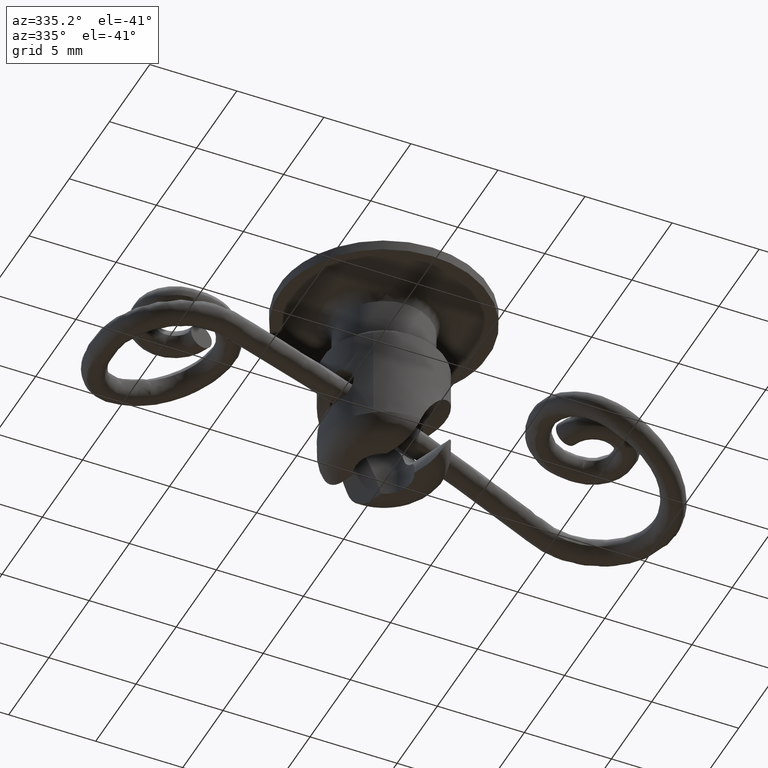
[diagram: clean part render]
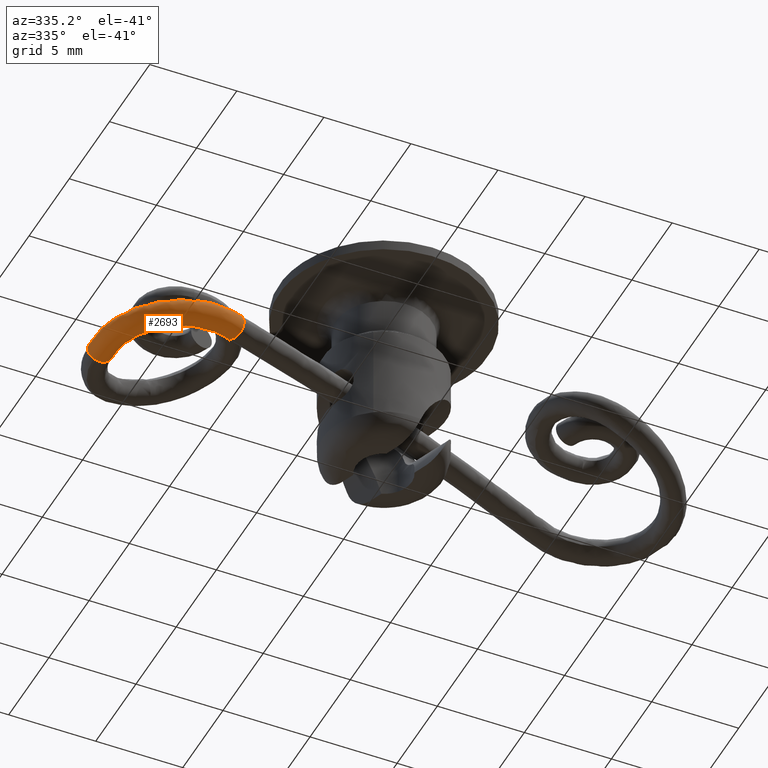
[diagram: same view with one face highlighted and labeled with its STEP entity id]
A machine part, auxiliary view. The second image highlights one B-rep face of the part: STEP entity #2693.
In plain terms, the highlighted face is a freeform B-spline surface patch.
Its self-contained STEP definition (entity closure, byte-faithful):
#1843=CARTESIAN_POINT('',(-15.851362978049870,-0.035747342229020,-0.562511445326942));
#1844=VERTEX_POINT('',#1843);
#1866=CARTESIAN_POINT('',(-15.702560363959901,-0.044682730714215,-0.737076567360537));
#1867=VERTEX_POINT('',#1866);
#1868=CARTESIAN_POINT('',(-15.702560363959901,-0.044682730714215,-0.737076567360537));
#1869=CARTESIAN_POINT('',(-15.714324535176139,-0.044021696693457,-0.717565575351801));
#1870=CARTESIAN_POINT('',(-15.727170419378069,-0.043283126895114,-0.698387621659394));
#1871=CARTESIAN_POINT('',(-15.754484377053620,-0.041681140525714,-0.661615811033436));
#1872=CARTESIAN_POINT('',(-15.783431855737209,-0.039953580187108,-0.626356114285103));
#1873=CARTESIAN_POINT('',(-15.815658820426490,-0.037973758986502,-0.594132173164435));
#1874=CARTESIAN_POINT('',(-15.838751173822160,-0.036537037574293,-0.573278093930521));
#1875=CARTESIAN_POINT('',(-15.845002051039350,-0.036146450298443,-0.567840929806667));
#1876=CARTESIAN_POINT('',(-15.851362978049870,-0.035747342229020,-0.562511445326942));
#1877=B_SPLINE_CURVE_WITH_KNOTS('',3,(#1868,#1869,#1870,#1871,#1872,#1873,#1874,#1875,#1876),.UNSPECIFIED.,.F.,.U.,(4,2,1,2,4),(0.0,0.031250000000003,0.062500000000006,0.093750000000010,0.105032502742349),.UNSPECIFIED.);
#1878=EDGE_CURVE('',#1867,#1844,#1877,.T.);
#1880=CARTESIAN_POINT('',(-16.675838631282570,0.031183997560970,-1.688415356968777));
#1881=VERTEX_POINT('',#1880);
#1882=CARTESIAN_POINT('',(-15.702560363959901,-0.044682730714215,-0.737076567360537));
#1883=CARTESIAN_POINT('',(-15.690789750928500,-0.045345940934791,-0.756598138988661));
#1884=CARTESIAN_POINT('',(-15.679820622488890,-0.045946350148482,-0.776919161550135));
#1885=CARTESIAN_POINT('',(-15.660008134965050,-0.046992894835358,-0.818257474081700));
#1886=CARTESIAN_POINT('',(-15.642263529445350,-0.047888787965696,-0.860336263053698));
#1887=CARTESIAN_POINT('',(-15.628623844300151,-0.048485577064181,-0.903884961083993));
#1888=CARTESIAN_POINT('',(-15.617098881075391,-0.048928273368281,-0.948190908684215));
#1889=CARTESIAN_POINT('',(-15.612377194132931,-0.049072797837666,-0.970836658911007));
#1890=CARTESIAN_POINT('',(-15.601725594005989,-0.049257592414892,-1.039149010878556));
#1891=CARTESIAN_POINT('',(-15.599377455478150,-0.049048310889253,-1.084702635874630));
#1892=CARTESIAN_POINT('',(-15.603638274967100,-0.048003191115364,-1.175832607929155));
#1893=CARTESIAN_POINT('',(-15.610365758916879,-0.047155213289313,-1.221877685596289));
#1894=CARTESIAN_POINT('',(-15.632224512207820,-0.044897613178829,-1.310787384297349));
#1895=CARTESIAN_POINT('',(-15.647262183515450,-0.043493021216028,-1.353836872467731));
#1896=CARTESIAN_POINT('',(-15.676059409270851,-0.040967176530538,-1.416276285654826));
#1897=CARTESIAN_POINT('',(-15.686776116197640,-0.040049157069553,-1.436834165485584));
#1898=CARTESIAN_POINT('',(-15.709977902889561,-0.038101869076028,-1.476433987604539));
#1899=CARTESIAN_POINT('',(-15.722473081810790,-0.037071462561576,-1.495528589348351));
#1900=CARTESIAN_POINT('',(-15.762641831380110,-0.033809931418319,-1.550696185706986));
#1901=CARTESIAN_POINT('',(-15.793033371936520,-0.031406289415774,-1.584625559077020));
#1902=CARTESIAN_POINT('',(-15.861122165686790,-0.026135315925091,-1.646722403721453));
#1903=CARTESIAN_POINT('',(-15.897893641586879,-0.023339487213968,-1.674065174734449));
#1904=CARTESIAN_POINT('',(-15.956322999450959,-0.018962955796450,-1.709461800118570));
#1905=CARTESIAN_POINT('',(-15.976379828547079,-0.017471053508226,-1.720342067368045));
#1906=CARTESIAN_POINT('',(-16.017675528133140,-0.014419919606739,-1.740231691228751));
#1907=CARTESIAN_POINT('',(-16.038993971815419,-0.012854970613611,-1.749259627291171));
#1908=CARTESIAN_POINT('',(-16.103441132953709,-0.008153702842525,-1.772931117136142));
#1909=CARTESIAN_POINT('',(-16.147420048454730,-0.004983847837159,-1.784412696374978));
#1910=CARTESIAN_POINT('',(-16.237470821519629,0.001429484680177,-1.798502908013153));
#1911=CARTESIAN_POINT('',(-16.283946048853831,0.004699634364444,-1.800923962216466));
#1912=CARTESIAN_POINT('',(-16.375022933986791,0.011033060754984,-1.796521400469280));
#1913=CARTESIAN_POINT('',(-16.420063321413771,0.014128503560284,-1.789878125284685));
#1914=CARTESIAN_POINT('',(-16.486886869232031,0.018666193701656,-1.773339844331489));
#1915=CARTESIAN_POINT('',(-16.509056370000469,0.020162163253254,-1.766699661121625));
#1916=CARTESIAN_POINT('',(-16.552208759840809,0.023055222556837,-1.751482131363098));
#1917=CARTESIAN_POINT('',(-16.573312890346731,0.024460583228384,-1.742879405511981));
#1918=CARTESIAN_POINT('',(-16.622107299498889,0.027687058371206,-1.720206524139206));
#1919=CARTESIAN_POINT('',(-16.649475690353750,0.029478399048031,-1.705251238148345));
#1920=CARTESIAN_POINT('',(-16.675838631282570,0.031183997560970,-1.688415356968777));
#1921=B_SPLINE_CURVE_WITH_KNOTS('',3,(#1882,#1883,#1884,#1885,#1886,#1887,#1888,#1889,#1890,#1891,#1892,#1893,#1894,#1895,#1896,#1897,#1898,#1899,#1900,#1901,#1902,#1903,#1904,#1905,#1906,#1907,#1908,#1909,#1910,#1911,#1912,#1913,#1914,#1915,#1916,#1917,#1918,#1919,#1920),.UNSPECIFIED.,.F.,.U.,(4,2,1,2,2,2,2,2,2,2,2,2,2,2,2,2,2,2,2,4),(0.0,0.031250000000002,0.062500000000003,0.093750000000005,0.125000000000006,0.187500000000007,0.250000000000009,0.312500000000010,0.343750000000011,0.375000000000012,0.437500000000013,0.500000000000015,0.531250000000016,0.562500000000016,0.625000000000013,0.687500000000010,0.750000000000007,0.781250000000008,0.812500000000009,0.855142002009975),.UNSPECIFIED.);
#1922=EDGE_CURVE('',#1867,#1881,#1921,.T.);
#2117=CARTESIAN_POINT('',(-16.895671377089052,0.044698297213700,-1.461551791880656));
#2118=VERTEX_POINT('',#2117);
#2119=CARTESIAN_POINT('',(-16.675838631282570,0.031183997560970,-1.688415356968777));
#2120=CARTESIAN_POINT('',(-16.688115652413099,0.031978283137762,-1.680575094678145));
#2121=CARTESIAN_POINT('',(-16.700174623580381,0.032753973980269,-1.672326991352333));
#2122=CARTESIAN_POINT('',(-16.749192848632049,0.035887576198699,-1.636423811596442));
#2123=CARTESIAN_POINT('',(-16.783210286948350,0.038014219643565,-1.605654606490253));
#2124=CARTESIAN_POINT('',(-16.845077242508012,0.041780061648125,-1.537286579588553));
#2125=CARTESIAN_POINT('',(-16.872073560472980,0.043369069020755,-1.500748868534708));
#2126=CARTESIAN_POINT('',(-16.895671377089052,0.044698297213700,-1.461551791880656));
#2127=B_SPLINE_CURVE_WITH_KNOTS('',3,(#2119,#2120,#2121,#2122,#2123,#2124,#2125,#2126),.UNSPECIFIED.,.F.,.U.,(4,2,2,4),(0.855142002009974,0.875000000000006,0.937500000000003,1.0),.UNSPECIFIED.);
#2128=EDGE_CURVE('',#1881,#2118,#2127,.T.);
#2130=CARTESIAN_POINT('',(-16.552788494496760,0.012178419610532,-0.447710236215660));
#2131=VERTEX_POINT('',#2130);
#2132=CARTESIAN_POINT('',(-16.552788494496760,0.012178419610532,-0.447710236215660));
#2133=CARTESIAN_POINT('',(-16.590445244918190,0.014931417912053,-0.462531374062653));
#2134=CARTESIAN_POINT('',(-16.626519791417941,0.017601342722640,-0.480438444089063));
#2135=CARTESIAN_POINT('',(-16.680315419749959,0.021634455976669,-0.512994373725650));
#2136=CARTESIAN_POINT('',(-16.699250625442019,0.023065237004521,-0.525722505838855));
#2137=CARTESIAN_POINT('',(-16.736004697594112,0.025866181107677,-0.553122830345235));
#2138=CARTESIAN_POINT('',(-16.753877906601641,0.027240692602966,-0.567859051323618));
#2139=CARTESIAN_POINT('',(-16.804625150279779,0.031182193680034,-0.614123287547417));
#2140=CARTESIAN_POINT('',(-16.834999329144210,0.033595297490177,-0.647945113060947));
#2141=CARTESIAN_POINT('',(-16.888726030087000,0.037983982533161,-0.721639103381998));
#2142=CARTESIAN_POINT('',(-16.912234317563730,0.039973202192326,-0.761835968088887));
#2143=CARTESIAN_POINT('',(-16.950530940161180,0.043363331954384,-0.844778501241623));
#2144=CARTESIAN_POINT('',(-16.965625808000748,0.044788316472348,-0.887831920958163));
#2145=CARTESIAN_POINT('',(-16.982117294813140,0.046514487003386,-0.954812909264909));
#2146=CARTESIAN_POINT('',(-16.986564570927030,0.047019660927249,-0.977548498985174));
#2147=CARTESIAN_POINT('',(-16.993172819638360,0.047868128568502,-1.022879123249094));
#2148=CARTESIAN_POINT('',(-16.997560868584610,0.048561377849680,-1.068307300446899));
#2149=CARTESIAN_POINT('',(-16.997487068451239,0.048942309108323,-1.113931530367975));
#2150=CARTESIAN_POINT('',(-16.995089132971160,0.049160406642452,-1.159657884040670));
#2151=CARTESIAN_POINT('',(-16.992693617655299,0.049186747204104,-1.182704740322913));
#2152=CARTESIAN_POINT('',(-16.982054146015610,0.049014242649551,-1.250939863874918));
#2153=CARTESIAN_POINT('',(-16.970524713727510,0.048574090308947,-1.295027710770801));
#2154=CARTESIAN_POINT('',(-16.947059454530599,0.047460944393110,-1.359208960577981));
#2155=CARTESIAN_POINT('',(-16.938199089091711,0.047013677517423,-1.380274433467460));
#2156=CARTESIAN_POINT('',(-16.923322276301960,0.046226432607087,-1.411371268678771));
#2157=CARTESIAN_POINT('',(-16.918089984499410,0.045944111932686,-1.421668162197110));
#2158=CARTESIAN_POINT('',(-16.907129935116870,0.045342393571320,-1.442004934932489));
#2159=CARTESIAN_POINT('',(-16.901547240869409,0.045030557766506,-1.451791462184160));
#2160=CARTESIAN_POINT('',(-16.895671377089052,0.044698297213700,-1.461551791880656));
#2161=B_SPLINE_CURVE_WITH_KNOTS('',3,(#2132,#2133,#2134,#2135,#2136,#2137,#2138,#2139,#2140,#2141,#2142,#2143,#2144,#2145,#2146,#2147,#2148,#2149,#2150,#2151,#2152,#2153,#2154,#2155,#2156,#2157,#2158,#2159,#2160),.UNSPECIFIED.,.F.,.U.,(4,2,2,2,2,2,2,2,1,2,2,2,2,2,4),(0.444932661165412,0.500000000000014,0.531250000000013,0.562500000000012,0.625000000000010,0.687500000000007,0.750000000000005,0.781250000000004,0.812500000000004,0.843750000000003,0.875000000000002,0.937500000000001,0.968750000000000,0.984375000000000,1.0),.UNSPECIFIED.);
#2162=EDGE_CURVE('',#2131,#2118,#2161,.T.);
#2190=CARTESIAN_POINT('',(-16.545970037136929,0.096153984104199,-0.448632201716833));
#2191=CARTESIAN_POINT('',(-16.654752066600711,0.104809266420495,-0.491492759826956));
#2192=CARTESIAN_POINT('',(-16.753115572632201,0.112302845146559,-0.561287401899285));
#2193=CARTESIAN_POINT('',(-16.945442479716419,0.125946201749857,-0.791836148446841));
#2194=CARTESIAN_POINT('',(-17.004363704710979,0.128866621008720,-0.979940171733619));
#2195=CARTESIAN_POINT('',(-16.972234785980120,0.122261096069556,-1.344989702959366));
#2196=CARTESIAN_POINT('',(-16.881382486761670,0.112775827589112,-1.519687296952271));
#2197=CARTESIAN_POINT('',(-16.601400325508742,0.086795964873423,-1.754788286964860));
#2198=CARTESIAN_POINT('',(-16.413994546786640,0.070461350286759,-1.813743970416805));
#2199=CARTESIAN_POINT('',(-16.050168895851169,0.040325801024813,-1.781177447794204));
#2200=CARTESIAN_POINT('',(-15.875989401133680,0.026710436020663,-1.689855780918014));
#2201=CARTESIAN_POINT('',(-15.641444392494391,0.010072196260542,-1.408698772933187));
#2202=CARTESIAN_POINT('',(-15.582523167499909,0.007151777001681,-1.220594749646408));
#2203=CARTESIAN_POINT('',(-15.614652086230720,0.013757301940845,-0.855545218420636));
#2204=CARTESIAN_POINT('',(-15.705504385449270,0.023242570421299,-0.680847624427730));
#2205=CARTESIAN_POINT('',(-15.845495466075720,0.036232501779140,-0.563297129421449));
#2206=CARTESIAN_POINT('',(-16.547808139677912,0.073622690294901,-0.448385819601387));
#2207=CARTESIAN_POINT('',(-16.656583406460790,0.082360877337775,-0.491247284350685));
#2208=CARTESIAN_POINT('',(-16.754940615571631,0.089931650990195,-0.561042770620492));
#2209=CARTESIAN_POINT('',(-16.947254659049531,0.103732704611612,-0.791593241730490));
#2210=CARTESIAN_POINT('',(-17.006171254600559,0.106709877051638,-0.979697885666393));
#2211=CARTESIAN_POINT('',(-16.974042119352390,0.100107006737286,-1.344747445925343));
#2212=CARTESIAN_POINT('',(-16.883194234393439,0.090567623353759,-1.519444448123545));
#2213=CARTESIAN_POINT('',(-16.603227454263571,0.064399201407753,-1.754543376070354));
#2214=CARTESIAN_POINT('',(-16.415832547690659,0.047931303610055,-1.813497601949079));
#2215=CARTESIAN_POINT('',(-16.052028865465338,0.017526436702471,-1.780928134091885));
#2216=CARTESIAN_POINT('',(-15.877860332029179,0.003776695676728,-1.689604997690581));
#2217=CARTESIAN_POINT('',(-15.643331010714659,-0.013053857520121,-1.408445886580825));
#2218=CARTESIAN_POINT('',(-15.584414415163719,-0.016031029960147,-1.220341242644922));
#2219=CARTESIAN_POINT('',(-15.616543550411841,-0.009428159645795,-0.855291682385947));
#2220=CARTESIAN_POINT('',(-15.707391435370880,0.000111223737745,-0.680594680187743));
#2221=CARTESIAN_POINT('',(-15.847374825435800,0.013195434710742,-0.563045216214352));
#2222=CARTESIAN_POINT('',(-16.549659668080729,0.050920913778403,-0.448137526029384));
#2223=CARTESIAN_POINT('',(-16.658436483977621,0.059639960763567,-0.490998780272562));
#2224=CARTESIAN_POINT('',(-16.756795135470458,0.067192912565756,-0.560794070530043));
#2225=CARTESIAN_POINT('',(-16.949112125383738,0.080957558957766,-0.791344141205673));
#2226=CARTESIAN_POINT('',(-17.008029781173239,0.083921628880369,-0.979448641015673));
#2227=CARTESIAN_POINT('',(-16.975900695020460,0.077318145657412,-1.344498194483716));
#2228=CARTESIAN_POINT('',(-16.885051798616111,0.067791255656889,-1.519195334058732));
#2229=CARTESIAN_POINT('',(-16.605081494703771,0.041666365987474,-1.754294740736341));
#2230=CARTESIAN_POINT('',(-16.417684097492600,0.025229239018884,-1.813249305021119));
#2231=CARTESIAN_POINT('',(-16.053875382790871,-0.005113451044140,-1.780680520982420));
#2232=CARTESIAN_POINT('',(-15.879704338505739,-0.018832168929036,-1.689357725782734));
#2233=CARTESIAN_POINT('',(-15.645171423977340,-0.035618323065633,-1.408199103007574));
#2234=CARTESIAN_POINT('',(-15.586253768187930,-0.038582392988237,-1.220094603197574));
#2235=CARTESIAN_POINT('',(-15.618382854340650,-0.031978909765280,-0.855045049729511));
#2236=CARTESIAN_POINT('',(-15.709231750745070,-0.022452019764746,-0.680347910154494));
#2237=CARTESIAN_POINT('',(-15.849216902701230,-0.009389574930044,-0.562798206815701));
#2238=CARTESIAN_POINT('',(-16.566481027911660,-0.155434096864376,-0.445879731195164));
#2239=CARTESIAN_POINT('',(-16.675483953356380,-0.149490942420686,-0.488710596706381));
#2240=CARTESIAN_POINT('',(-16.774053140649901,-0.144522702449763,-0.558477591043355));
#2241=CARTESIAN_POINT('',(-16.966800218445449,-0.136038213547926,-0.788969857289467));
#2242=CARTESIAN_POINT('',(-17.025872653363798,-0.134974406466751,-0.977053553600882));
#2243=CARTESIAN_POINT('',(-16.993750793057799,-0.141666775364264,-1.342102132602926));
#2244=CARTESIAN_POINT('',(-16.902754298875550,-0.149381740854908,-1.516819107211130));
#2245=CARTESIAN_POINT('',(-16.622269716436950,-0.169193117399281,-1.751987628992310));
#2246=CARTESIAN_POINT('',(-16.434508805317702,-0.181167533310492,-1.810991047748550));
#2247=CARTESIAN_POINT('',(-16.069965565101949,-0.202492681811354,-1.778520981692655));
#2248=CARTESIAN_POINT('',(-15.895428032296151,-0.211712097703911,-1.687247442115930));
#2249=CARTESIAN_POINT('',(-15.660370620350349,-0.222059035389079,-1.406159312547500));
#2250=CARTESIAN_POINT('',(-15.601298185431750,-0.223122842470253,-1.218075616236084));
#2251=CARTESIAN_POINT('',(-15.633420045737701,-0.216430473572741,-0.853027037234195));
#2252=CARTESIAN_POINT('',(-15.724416539919650,-0.208715508082174,-0.678310062625991));
#2253=CARTESIAN_POINT('',(-15.864658831139129,-0.198809819809949,-0.560725801735324));
#2254=CARTESIAN_POINT('',(-16.569831782524009,-0.347715446589045,-0.442569185267426));
#2255=CARTESIAN_POINT('',(-16.679115027367342,-0.349187347500039,-0.485287180631520));
#2256=CARTESIAN_POINT('',(-16.777945224827729,-0.351123474552246,-0.554949078087347));
#2257=CARTESIAN_POINT('',(-16.971225495899500,-0.356743515124523,-0.785226647131918));
#2258=CARTESIAN_POINT('',(-17.030489809416249,-0.360755751845132,-0.973233075528602));
#2259=CARTESIAN_POINT('',(-16.998376887001552,-0.367685553403507,-1.338278036664710));
#2260=CARTESIAN_POINT('',(-16.907197397074150,-0.370560445682447,-1.513068683600080));
#2261=CARTESIAN_POINT('',(-16.626075219019199,-0.373506957015879,-1.748493914801685));
#2262=CARTESIAN_POINT('',(-16.437863634236852,-0.373560431946470,-1.807678789877075));
#2263=CARTESIAN_POINT('',(-16.072409759762650,-0.370797626677558,-1.775575383631045));
#2264=CARTESIAN_POINT('',(-15.897417873894900,-0.367998359370717,-1.684484789714935));
#2265=CARTESIAN_POINT('',(-15.661710226246450,-0.361144651355784,-1.403658486001730));
#2266=CARTESIAN_POINT('',(-15.602445912729699,-0.357132414635174,-1.215652057605202));
#2267=CARTESIAN_POINT('',(-15.634558835144400,-0.350202613076800,-0.850607096469097));
#2268=CARTESIAN_POINT('',(-15.725738325071751,-0.347327720797860,-0.675816449533725));
#2269=CARTESIAN_POINT('',(-15.866299414099251,-0.345854465131144,-0.558103833932923));
#2270=CARTESIAN_POINT('',(-16.551278632678159,-0.722786281351088,-0.433654713716625));
#2271=CARTESIAN_POINT('',(-16.660073672040991,-0.734127306784814,-0.476138143144106));
#2272=CARTESIAN_POINT('',(-16.758449283471808,-0.745252853460882,-0.545581629246289));
#2273=CARTESIAN_POINT('',(-16.950800894997549,-0.769645423370469,-0.775413017275846));
#2274=CARTESIAN_POINT('',(-17.009730980965550,-0.780413657390281,-0.963258869299279));
#2275=CARTESIAN_POINT('',(-16.977602375571049,-0.787659467307958,-1.328296314694438));
#2276=CARTESIAN_POINT('',(-16.886741526786100,-0.784092424720543,-1.503240068542460));
#2277=CARTESIAN_POINT('',(-16.606729681290151,-0.764592510901394,-1.739198794070620));
#2278=CARTESIAN_POINT('',(-16.419302950681850,-0.748779716876937,-1.798760771391415));
#2279=CARTESIAN_POINT('',(-16.055435006550599,-0.713956864371078,-1.767419355798500));
#2280=CARTESIAN_POINT('',(-15.881234430958150,-0.695161239190083,-1.676708958079020));
#2281=CARTESIAN_POINT('',(-15.646659294951100,-0.665414202714938,-1.396426777555480));
#2282=CARTESIAN_POINT('',(-15.587729208983101,-0.654645968695127,-1.208580925531892));
#2283=CARTESIAN_POINT('',(-15.619857814377649,-0.647400158777449,-0.843543480136735));
#2284=CARTESIAN_POINT('',(-15.710718663162600,-0.650967201364864,-0.668599726288713));
#2285=CARTESIAN_POINT('',(-15.850724585910550,-0.660717158274438,-0.550620363524633));
#2286=CARTESIAN_POINT('',(-16.529717571627440,-0.909681972823458,-0.428006655874656));
#2287=CARTESIAN_POINT('',(-16.637945270310642,-0.925940726875131,-0.470341468609551));
#2288=CARTESIAN_POINT('',(-16.735792612783001,-0.941645308946274,-0.539646573324834));
#2289=CARTESIAN_POINT('',(-16.927065048336150,-0.975392122767365,-0.769195269498005));
#2290=CARTESIAN_POINT('',(-16.985606745111351,-0.989526831084401,-0.956939383568051));
#2291=CARTESIAN_POINT('',(-16.953459948178701,-0.996930104494867,-1.321972067821352));
#2292=CARTESIAN_POINT('',(-16.862969409069152,-0.990153081469086,-1.497012827799356));
#2293=CARTESIAN_POINT('',(-16.584247905112498,-0.959468240130743,-1.733309566222620));
#2294=CARTESIAN_POINT('',(-16.397733260661401,-0.935749373938076,-1.793110468881325));
#2295=CARTESIAN_POINT('',(-16.035708326573751,-0.884951181747685,-1.762251836850650));
#2296=CARTESIAN_POINT('',(-15.862427325919549,-0.858184662519720,-1.671782324454905));
#2297=CARTESIAN_POINT('',(-15.629168258171800,-0.817030011518351,-1.391844890097382));
#2298=CARTESIAN_POINT('',(-15.570626561396599,-0.802895303201276,-1.204100776027334));
#2299=CARTESIAN_POINT('',(-15.602773358329101,-0.795492029790829,-0.839068091773876));
#2300=CARTESIAN_POINT('',(-15.693263897439151,-0.802269052816630,-0.664027331795877));
#2301=CARTESIAN_POINT('',(-15.832624649417451,-0.817611473485811,-0.545878962584323));
#2302=CARTESIAN_POINT('',(-16.428746765013159,-1.463604311643322,-0.407637119661529));
#2303=CARTESIAN_POINT('',(-16.534317616768359,-1.494438250950973,-0.449435951863408));
#2304=CARTESIAN_POINT('',(-16.629691088089629,-1.523714197431144,-0.518241989427382));
#2305=CARTESIAN_POINT('',(-16.815909778330401,-1.585185157574805,-0.746771168687216));
#2306=CARTESIAN_POINT('',(-16.872632673909202,-1.609297434710540,-0.934148369358611));
#2307=CARTESIAN_POINT('',(-16.840400729616601,-1.617167394056335,-1.299163884377028));
#2308=CARTESIAN_POINT('',(-16.751644368665399,-1.600876614373290,-1.474554494244170));
#2309=CARTESIAN_POINT('',(-16.478965552196652,-1.537041832074490,-1.712070265010620));
#2310=CARTESIAN_POINT('',(-16.296722207215101,-1.489890913369472,-1.772732843526690));
#2311=CARTESIAN_POINT('',(-15.943328071085350,-1.391744939145526,-1.743615352803835));
#2312=CARTESIAN_POINT('',(-15.774353421911000,-1.341354250117514,-1.654014584202325));
#2313=CARTESIAN_POINT('',(-15.547257458202751,-1.266389664576540,-1.375320463153750));
#2314=CARTESIAN_POINT('',(-15.490534562623949,-1.242277387440886,-1.187943262482354));
#2315=CARTESIAN_POINT('',(-15.522766506916851,-1.234407428095048,-0.822927747464247));
#2316=CARTESIAN_POINT('',(-15.611522867867150,-1.250698207778058,-0.647537137597108));
#2317=CARTESIAN_POINT('',(-15.747862276101531,-1.282615598927437,-0.528779252213726));
#2318=CARTESIAN_POINT('',(-16.312899971721851,-1.823676183317355,-0.389479242847969));
#2319=CARTESIAN_POINT('',(-16.415422560594219,-1.863984578189210,-0.430800290375102));
#2320=CARTESIAN_POINT('',(-16.507957704490281,-1.902082455821530,-0.499161448803902));
#2321=CARTESIAN_POINT('',(-16.688378129250001,-1.981575221313060,-0.726781809319600));
#2322=CARTESIAN_POINT('',(-16.743014287706700,-2.012173315767035,-0.913831936225985));
#2323=CARTESIAN_POINT('',(-16.710684688976151,-2.020346632876405,-1.278832148045410));
#2324=CARTESIAN_POINT('',(-16.623918012050051,-1.997871525612285,-1.454534622713520));
#2325=CARTESIAN_POINT('',(-16.358172146815448,-1.912487944576910,-1.693137067030535));
#2326=CARTESIAN_POINT('',(-16.180829377090099,-1.850105248614340,-1.754567762742320));
#2327=CARTESIAN_POINT('',(-15.837337569061100,-1.721181313200760,-1.727002363691875));
#2328=CARTESIAN_POINT('',(-15.673303695851450,-1.655433965777140,-1.638176012045390));
#2329=CARTESIAN_POINT('',(-15.453278787607900,-1.558491568836175,-1.360590206538440));
#2330=CARTESIAN_POINT('',(-15.398642629152150,-1.527893474382240,-1.173540079632056));
#2331=CARTESIAN_POINT('',(-15.430972227882400,-1.519720157272945,-0.808539867812632));
#2332=CARTESIAN_POINT('',(-15.517738904808200,-1.542195264537065,-0.632837393144835));
#2333=CARTESIAN_POINT('',(-15.650611837425330,-1.584887055054733,-0.513536170986170));
#2334=CARTESIAN_POINT('',(-15.831350011921220,-2.840256355055007,-0.323087268187892));
#2335=CARTESIAN_POINT('',(-15.921201662245380,-2.907313688465069,-0.362661358411547));
#2336=CARTESIAN_POINT('',(-16.001938527071189,-2.970318250836763,-0.429395874684999));
#2337=CARTESIAN_POINT('',(-16.158256901715099,-3.100691415602820,-0.653693259763180));
#2338=CARTESIAN_POINT('',(-16.204218994727150,-3.149600709124610,-0.839547485929116));
#2339=CARTESIAN_POINT('',(-16.171483533332701,-3.158630465847725,-1.204491747705800));
#2340=CARTESIAN_POINT('',(-16.092987558420450,-3.118695325317750,-1.381334517601188));
#2341=CARTESIAN_POINT('',(-15.856060460746351,-2.972473665391926,-1.623910245679435));
#2342=CARTESIAN_POINT('',(-15.699088295417249,-2.867087554517165,-1.688149463107150));
#2343=CARTESIAN_POINT('',(-15.396758241987749,-2.651269143214240,-1.666259085880295));
#2344=CARTESIAN_POINT('',(-15.253262051779050,-2.542165816459500,-1.580264288507410));
#2345=CARTESIAN_POINT('',(-15.062629887579149,-2.383174152110810,-1.306730892070604));
#2346=CARTESIAN_POINT('',(-15.016667794565199,-2.334264858588945,-1.120876665904670));
#2347=CARTESIAN_POINT('',(-15.049403255960300,-2.325235101865670,-0.755932404127985));
#2348=CARTESIAN_POINT('',(-15.127899230873201,-2.365170242395650,-0.579089634231976));
#2349=CARTESIAN_POINT('',(-15.246362779710550,-2.438281072358600,-0.457801770193163));
#2350=CARTESIAN_POINT('',(-15.329298752961760,-3.430136170864357,-0.262762472238451));
#2351=CARTESIAN_POINT('',(-15.405940045319170,-3.512714803972058,-0.300749251478961));
#2352=CARTESIAN_POINT('',(-15.474376367185380,-3.590171680075454,-0.366005777249802));
#2353=CARTESIAN_POINT('',(-15.605566659989750,-3.750068618011310,-0.587283860065247));
#2354=CARTESIAN_POINT('',(-15.642485448227299,-3.809603127726365,-0.772051475304473));
#2355=CARTESIAN_POINT('',(-15.609326909381000,-3.819129810554345,-1.136944904621242));
#2356=CARTESIAN_POINT('',(-15.539453767031750,-3.769063319947625,-1.314823766002672));
#2357=CARTESIAN_POINT('',(-15.332572349730750,-3.587539818232585,-1.561009682056730));
#2358=CARTESIAN_POINT('',(-15.196838015938001,-3.457200598481035,-1.627800765042265));
#2359=CARTESIAN_POINT('',(-14.937422048633920,-3.190960917637725,-1.611066797074475));
#2360=CARTESIAN_POINT('',(-14.815337855253000,-3.056699915962605,-1.527644791096745));
#2361=CARTESIAN_POINT('',(-14.655349693297101,-2.861703650187325,-1.257793470590104));
#2362=CARTESIAN_POINT('',(-14.618430905059521,-2.802169140472115,-1.073025855349634));
#2363=CARTESIAN_POINT('',(-14.651589443905840,-2.792642457644290,-0.708132426033489));
#2364=CARTESIAN_POINT('',(-14.721462586254500,-2.842708948250545,-0.530253564652680));
#2365=CARTESIAN_POINT('',(-14.824903294905001,-2.933470699108375,-0.407160606625028));
#2366=CARTESIAN_POINT('',(-14.096343790596441,-4.277732508310133,-0.125988803134676));
#2367=CARTESIAN_POINT('',(-14.140542661226620,-4.382613614773451,-0.160376694597597));
#2368=CARTESIAN_POINT('',(-14.178770920962650,-4.480836938239206,-0.222282193923874));
#2369=CARTESIAN_POINT('',(-14.248250895864560,-4.683156401008341,-0.436714658103232));
#2370=CARTESIAN_POINT('',(-14.262960880912020,-4.757958197235889,-0.619018618659035));
#2371=CARTESIAN_POINT('',(-14.228763415875020,-4.768198840963030,-0.983796802963217));
#2372=CARTESIAN_POINT('',(-14.180066548060200,-4.703574628292130,-1.164024783673970));
#2373=CARTESIAN_POINT('',(-14.046972352496001,-4.471326033380370,-1.418396034077904));
#2374=CARTESIAN_POINT('',(-13.963394596538880,-4.305131799135999,-1.490972928162712));
#2375=CARTESIAN_POINT('',(-13.809368445136201,-3.966442042643010,-1.485930016057490));
#2376=CARTESIAN_POINT('',(-13.739868516964600,-3.796032115257390,-1.408341263276410));
#2377=CARTESIAN_POINT('',(-13.655136840254340,-3.549301063099750,-1.146838258179632));
#2378=CARTESIAN_POINT('',(-13.640426855206879,-3.474499266872365,-0.964534297625076));
#2379=CARTESIAN_POINT('',(-13.674624320243881,-3.464258623145065,-0.599756113320271));
#2380=CARTESIAN_POINT('',(-13.723321188059320,-3.528882835816435,-0.419528132608892));
#2381=CARTESIAN_POINT('',(-13.789868285841431,-3.645007133272002,-0.292342507407549));
#2382=CARTESIAN_POINT('',(-13.366985696427660,-4.534386499058246,-0.049711386890426));
#2383=CARTESIAN_POINT('',(-13.391993172509141,-4.646020821216622,-0.082092213057690));
#2384=CARTESIAN_POINT('',(-13.412351781335550,-4.750532245883539,-0.142128877226170));
#2385=CARTESIAN_POINT('',(-13.445326879074020,-4.965697280234820,-0.352743606570356));
#2386=CARTESIAN_POINT('',(-13.446899206247100,-5.045122007997150,-0.533673611761299));
#2387=CARTESIAN_POINT('',(-13.412087194850059,-5.055578791510560,-0.898387527980339));
#2388=CARTESIAN_POINT('',(-13.375917222822700,-4.986546456138840,-1.079925591724074));
#2389=CARTESIAN_POINT('',(-13.286472070344200,-4.738938197847930,-1.338861727519344));
#2390=CARTESIAN_POINT('',(-13.233747678178901,-4.561887005161530,-1.414665314161860));
#2391=CARTESIAN_POINT('',(-13.142065141851440,-4.201259264616920,-1.416142392972946));
#2392=CARTESIAN_POINT('',(-13.103671563411520,-4.019903402057050,-1.341806789536234));
#2393=CARTESIAN_POINT('',(-13.063458029584741,-3.757507018701830,-1.084959558627444));
#2394=CARTESIAN_POINT('',(-13.061885702411040,-3.678082290940115,-0.904029553437746));
#2395=CARTESIAN_POINT('',(-13.096697713808060,-3.667625507426400,-0.539315637218708));
#2396=CARTESIAN_POINT('',(-13.132867685835439,-3.736657842798115,-0.357777573474972));
#2397=CARTESIAN_POINT('',(-13.177590262075000,-3.860461971943415,-0.228309505577338));
#2398=CARTESIAN_POINT('',(-12.248740100583371,-4.617587661606564,0.061364522223679));
#2399=CARTESIAN_POINT('',(-12.244323512818680,-4.731411164495695,0.031906402161530));
#2400=CARTESIAN_POINT('',(-12.237284546029031,-4.837960984504031,-0.025408848169069));
#2401=CARTESIAN_POINT('',(-12.214290729955680,-5.057290101139460,-0.230464160160121));
#2402=CARTESIAN_POINT('',(-12.195720543113939,-5.138213385950740,-0.409393401220600));
#2403=CARTESIAN_POINT('',(-12.159966356899719,-5.148740115249010,-0.774013733667079));
#2404=CARTESIAN_POINT('',(-12.143002525824800,-5.078278737897520,-0.957459554040986));
#2405=CARTESIAN_POINT('',(-12.120479709882840,-4.825691248755910,-1.223043119656336));
#2406=CARTESIAN_POINT('',(-12.115059416748821,-4.645120528470220,-1.303545445729236));
#2407=CARTESIAN_POINT('',(-12.118961531195520,-4.277381146342435,-1.314516993719404));
#2408=CARTESIAN_POINT('',(-12.128259910207920,-4.092476962098485,-1.244918654680046));
#2409=CARTESIAN_POINT('',(-12.156301149321459,-3.825002429616265,-0.994851201033045));
#2410=CARTESIAN_POINT('',(-12.174871336163500,-3.744079144804670,-0.815921959971942));
#2411=CARTESIAN_POINT('',(-12.210625522377720,-3.733552415506555,-0.451301627525465));
#2412=CARTESIAN_POINT('',(-12.227589353452640,-3.804013792858040,-0.267855807151557));
#2413=CARTESIAN_POINT('',(-12.238850761423469,-3.930307537428923,-0.135064024343882));
#2414=CARTESIAN_POINT('',(-11.872440416047640,-4.595842464323630,0.097801242587826));
#2415=CARTESIAN_POINT('',(-11.858122369502899,-4.709093770079551,0.069301870407001));
#2416=CARTESIAN_POINT('',(-11.841863875769770,-4.815110797013258,0.012879337132509));
#2417=CARTESIAN_POINT('',(-11.800036025922321,-5.033351489336220,-0.190352295495445));
#2418=CARTESIAN_POINT('',(-11.774687707169200,-5.113883049081170,-0.368625217568071));
#2419=CARTESIAN_POINT('',(-11.738616477466559,-5.124391405349790,-0.733214851997424));
#2420=CARTESIAN_POINT('',(-11.728115687116359,-5.054303493173241,-0.917286482375912));
#2421=CARTESIAN_POINT('',(-11.728112837844320,-4.803017367366620,-1.185050633661580));
#2422=CARTESIAN_POINT('',(-11.738610796468260,-4.623366531663129,-1.267094307718512));
#2423=CARTESIAN_POINT('',(-11.774677996691500,-4.257485928242399,-1.281180367554952));
#2424=CARTESIAN_POINT('',(-11.800025142505520,-4.073509192075419,-1.213136013734620));
#2425=CARTESIAN_POINT('',(-11.851034715490220,-3.807362006315395,-0.965292559309974));
#2426=CARTESIAN_POINT('',(-11.876383034243339,-3.726830446570445,-0.787019637237659));
#2427=CARTESIAN_POINT('',(-11.912454263945961,-3.716322090302135,-0.422430002808616));
#2428=CARTESIAN_POINT('',(-11.922955054296180,-3.786410002478535,-0.238358372430129));
#2429=CARTESIAN_POINT('',(-11.922956478932189,-3.912053065381845,-0.104476296786984));
#2430=CARTESIAN_POINT('',(-11.321479584844131,-4.490091295860732,0.149751527317416));
#2431=CARTESIAN_POINT('',(-11.292664278405290,-4.600559970367764,0.122619106076914));
#2432=CARTESIAN_POINT('',(-11.262906978782500,-4.703986004806748,0.067469379097447));
#2433=CARTESIAN_POINT('',(-11.193503208243561,-4.916933691391900,-0.133162112382196));
#2434=CARTESIAN_POINT('',(-11.158230665288620,-4.995560343043800,-0.310499277048894));
#2435=CARTESIAN_POINT('',(-11.121695245076859,-5.005979524082950,-0.675045144286280));
#2436=CARTESIAN_POINT('',(-11.120657346825400,-4.937707893896430,-0.860009034389347));
#2437=CARTESIAN_POINT('',(-11.153627204614500,-4.692750540317340,-1.130882193358912));
#2438=CARTESIAN_POINT('',(-11.187431937785959,-4.517573223330370,-1.215123470625174));
#2439=CARTESIAN_POINT('',(-11.270593778032721,-4.160732030656745,-1.233650098485244));
#2440=CARTESIAN_POINT('',(-11.319438788407361,-3.981265523340155,-1.167821365203794));
#2441=CARTESIAN_POINT('',(-11.404077532967060,-3.721573222626715,-0.923148814619020));
#2442=CARTESIAN_POINT('',(-11.439350075921981,-3.642946570974815,-0.745811649952166));
#2443=CARTESIAN_POINT('',(-11.475885496133740,-3.632527389935510,-0.381265782714623));
#2444=CARTESIAN_POINT('',(-11.476923394385221,-3.700799020122105,-0.196301892611555));
#2445=CARTESIAN_POINT('',(-11.460438465490670,-3.823277696911650,-0.060865313126928));
#2446=CARTESIAN_POINT('',(-11.140104710204630,-4.442704151801873,0.166615477914066));
#2447=CARTESIAN_POINT('',(-11.106516944201060,-4.551925931936124,0.139926792241109));
#2448=CARTESIAN_POINT('',(-11.072315873566939,-4.654190945875263,0.085190239858440));
#2449=CARTESIAN_POINT('',(-10.993834183658580,-4.864766845357310,-0.114597201572110));
#2450=CARTESIAN_POINT('',(-10.955294613118520,-4.942539913424290,-0.291630603518198));
#2451=CARTESIAN_POINT('',(-10.918606384314920,-4.952919144041150,-0.656162263358123));
#2452=CARTESIAN_POINT('',(-10.920683646027200,-4.885461393025120,-0.841415796271187));
#2453=CARTESIAN_POINT('',(-10.964508033210519,-4.643339964313080,-1.113298192274352));
#2454=CARTESIAN_POINT('',(-11.005985295436661,-4.470167229872085,-1.198252849051466));
#2455=CARTESIAN_POINT('',(-11.104650566957520,-4.117376591029671,-1.218220961009964));
#2456=CARTESIAN_POINT('',(-11.161231012015721,-3.939931112365955,-1.153111455897774));
#2457=CARTESIAN_POINT('',(-11.256940389952600,-3.683131234948900,-0.909468234641005));
#2458=CARTESIAN_POINT('',(-11.295479960492660,-3.605358166881770,-0.732434832694917));
#2459=CARTESIAN_POINT('',(-11.332168189296240,-3.594978936265145,-0.367903172855147));
#2460=CARTESIAN_POINT('',(-11.330090927584139,-3.662436687281175,-0.182649639942086));
#2461=CARTESIAN_POINT('',(-11.308178733992481,-3.783497401637118,-0.046708441940424));
#2462=CARTESIAN_POINT('',(-10.785049027064961,-4.324471148219545,0.199146032707636));
#2463=CARTESIAN_POINT('',(-10.742118794951571,-4.430581877967957,0.173313312628874));
#2464=CARTESIAN_POINT('',(-10.699218692264131,-4.529950101293276,0.119373773719430));
#2465=CARTESIAN_POINT('',(-10.602966260416640,-4.734608304322600,-0.078785495917327));
#2466=CARTESIAN_POINT('',(-10.558031227132339,-4.810251653641350,-0.255232939951268));
#2467=CARTESIAN_POINT('',(-10.521043866888141,-4.820531219647230,-0.619737194098457));
#2468=CARTESIAN_POINT('',(-10.529219301905000,-4.755104136486540,-0.805549447990751));
#2469=CARTESIAN_POINT('',(-10.594292289859640,-4.520058463721621,-1.079378661849974));
#2470=CARTESIAN_POINT('',(-10.650789134223100,-4.351887246050476,-1.165709427325606));
#2471=CARTESIAN_POINT('',(-10.779803596576960,-4.009202901843185,-1.188458161191842));
#2472=CARTESIAN_POINT('',(-10.851526765090020,-3.836799968172585,-1.124736046685310));
#2473=CARTESIAN_POINT('',(-10.968907779538339,-3.587216793746510,-0.883078400786826));
#2474=CARTESIAN_POINT('',(-11.013842812822640,-3.511573444427910,-0.706630956752885));
#2475=CARTESIAN_POINT('',(-11.050830173066840,-3.501293878421800,-0.342126702605541));
#2476=CARTESIAN_POINT('',(-11.042654738049819,-3.566720961582490,-0.156314448713249));
#2477=CARTESIAN_POINT('',(-11.010118244072510,-3.684243797965028,-0.019399841783714));
#2478=CARTESIAN_POINT('',(-10.607678500270030,-4.251819914259137,0.215139779236594));
#2479=CARTESIAN_POINT('',(-10.557962868650590,-4.354987492044989,0.189915807559650));
#2480=CARTESIAN_POINT('',(-10.508744690583930,-4.451615260794116,0.136543091259163));
#2481=CARTESIAN_POINT('',(-10.399585434268900,-4.650675140350920,-0.060458250008979));
#2482=CARTESIAN_POINT('',(-10.350005400943701,-4.724303713075990,-0.236488970750726));
#2483=CARTESIAN_POINT('',(-10.312800786112680,-4.734489003824219,-0.600973734808070));
#2484=CARTESIAN_POINT('',(-10.325405304401320,-4.670983002530800,-0.787183341919514));
#2485=CARTESIAN_POINT('',(-10.405911077811300,-4.442631228164609,-1.062397100396184));
#2486=CARTESIAN_POINT('',(-10.473316591847340,-4.279191607118481,-1.149706531475556));
#2487=CARTESIAN_POINT('',(-10.624373563283701,-3.946068140069590,-1.174432797207382));
#2488=CARTESIAN_POINT('',(-10.707094837123799,-3.778435612650315,-1.111697371651640));
#2489=CARTESIAN_POINT('',(-10.840215881410399,-3.535679661971285,-0.871451833519760));
#2490=CARTESIAN_POINT('',(-10.889795914735480,-3.462051089246300,-0.695421112778013));
#2491=CARTESIAN_POINT('',(-10.927000529566500,-3.451865798498060,-0.330936348720515));
#2492=CARTESIAN_POINT('',(-10.914396011277841,-3.515371799791485,-0.144726741608916));
#2493=CARTESIAN_POINT('',(-10.874143124572850,-3.629547686974500,-0.007119862370736));
#2494=CARTESIAN_POINT('',(-10.417249433922970,-4.159107354873768,0.232032618022802));
#2495=CARTESIAN_POINT('',(-10.364972087552930,-4.261027914990233,0.207035897847787));
#2496=CARTESIAN_POINT('',(-10.313368625245980,-4.356494549373748,0.153874781750265));
#2497=CARTESIAN_POINT('',(-10.199336612263270,-4.553182411982562,-0.042694294002562));
#2498=CARTESIAN_POINT('',(-10.148002936717271,-4.625957321708350,-0.218569448054869));
#2499=CARTESIAN_POINT('',(-10.110716301725891,-4.636102669515453,-0.583046936355751));
#2500=CARTESIAN_POINT('',(-10.124992947141321,-4.573410634242135,-0.769404879202873));
#2501=CARTESIAN_POINT('',(-10.211325112707939,-4.347895075622025,-1.045135501273190));
#2502=CARTESIAN_POINT('',(-10.282849013825629,-4.186460239359918,-1.132810277451244));
#2503=CARTESIAN_POINT('',(-10.442227768230421,-3.857387730026114,-1.158274774443807));
#2504=CARTESIAN_POINT('',(-10.529101193809460,-3.691776430418097,-1.095907689145683));
#2505=CARTESIAN_POINT('',(-10.668164624276180,-3.451913183334182,-0.856189304081261));
#2506=CARTESIAN_POINT('',(-10.719498299822209,-3.379138273608382,-0.680314150028954));
#2507=CARTESIAN_POINT('',(-10.756784934813590,-3.368992925801276,-0.315836661728099));
#2508=CARTESIAN_POINT('',(-10.742508289398160,-3.431684961074591,-0.129478718881001));
#2509=CARTESIAN_POINT('',(-10.699342206614849,-3.544442740384660,0.008386592154183));
#2510=CARTESIAN_POINT('',(-10.392205838720489,-4.146912973648311,0.234254188397702));
#2511=CARTESIAN_POINT('',(-10.339982888778581,-4.248860029644879,0.209252642984770));
#2512=CARTESIAN_POINT('',(-10.288430076529311,-4.344351335065407,0.156087033970768));
#2513=CARTESIAN_POINT('',(-10.174501533631551,-4.541089596629830,-0.040491220103909));
#2514=CARTESIAN_POINT('',(-10.123205095711890,-4.613882644226212,-0.216369677324639));
#2515=CARTESIAN_POINT('',(-10.085920202639420,-4.624028840152271,-0.580847320149150));
#2516=CARTESIAN_POINT('',(-10.100161341620961,-4.561319509904742,-0.767202113399942));
#2517=CARTESIAN_POINT('',(-10.186369787602491,-4.335743688564981,-1.042921760924238));
#2518=CARTESIAN_POINT('',(-10.257806237413490,-4.174266255645182,-1.130588779732023));
#2519=CARTESIAN_POINT('',(-10.417008283984210,-3.845107673836979,-1.156037601849137));
#2520=CARTESIAN_POINT('',(-10.503793541173151,-3.679453428432161,-1.093662695569098));
#2521=CARTESIAN_POINT('',(-10.642730788609450,-3.439528719207260,-0.853933117429249));
#2522=CARTESIAN_POINT('',(-10.694027226529130,-3.366735671610859,-0.678054660208517));
#2523=CARTESIAN_POINT('',(-10.731312119601609,-3.356589475684798,-0.313577017384037));
#2524=CARTESIAN_POINT('',(-10.717070980620070,-3.419298805932325,-0.127222224133273));
#2525=CARTESIAN_POINT('',(-10.673966757629300,-3.532086716602220,0.010637599628904));
#2526=CARTESIAN_POINT('',(-10.367294015420679,-4.134782139750580,0.236464057879938));
#2527=CARTESIAN_POINT('',(-10.315204214955440,-4.236794023587879,0.211450700910759));
#2528=CARTESIAN_POINT('',(-10.263775381923780,-4.332345692059284,0.158274093825494));
#2529=CARTESIAN_POINT('',(-10.150100108915050,-4.529207265849171,-0.038326627563882));
#2530=CARTESIAN_POINT('',(-10.098894819616840,-4.602044692048582,-0.214213170484445));
#2531=CARTESIAN_POINT('',(-10.061614189881951,-4.612192964043892,-0.578691191499010));
#2532=CARTESIAN_POINT('',(-10.075768417326710,-4.549441318478494,-0.765038274911199));
#2533=CARTESIAN_POINT('',(-10.161674026859741,-4.323718052381262,-1.040731058112740));
#2534=CARTESIAN_POINT('',(-10.232896416575240,-4.162136397962008,-1.128379087862375));
#2535=CARTESIAN_POINT('',(-10.391665924395710,-3.832767221708835,-1.153789539899844));
#2536=CARTESIAN_POINT('',(-10.478235366431219,-3.667007900163865,-1.091395488874840));
#2537=CARTESIAN_POINT('',(-10.616863748149180,-3.426932810176202,-0.851638511570724));
#2538=CARTESIAN_POINT('',(-10.668069037447401,-3.354095383976770,-0.675751968650160));
#2539=CARTESIAN_POINT('',(-10.705349667182301,-3.343947111981460,-0.311273947635621));
#2540=CARTESIAN_POINT('',(-10.691195439737550,-3.406698757546856,-0.124926864223457));
#2541=CARTESIAN_POINT('',(-10.648242634971030,-3.519560390595484,0.012919527377339));
#2542=B_SPLINE_SURFACE_WITH_KNOTS('',3,3,((#2190,#2206,#2222,#2238,#2254,#2270,#2286,#2302,#2318,#2334,#2350,#2366,#2382,#2398,#2414,#2430,#2446,#2462,#2478,#2494,#2510,#2526),(#2191,#2207,#2223,#2239,#2255,#2271,#2287,#2303,#2319,#2335,#2351,#2367,#2383,#2399,#2415,#2431,#2447,#2463,#2479,#2495,#2511,#2527),(#2192,#2208,#2224,#2240,#2256,#2272,#2288,#2304,#2320,#2336,#2352,#2368,#2384,#2400,#2416,#2432,#2448,#2464,#2480,#2496,#2512,#2528),(#2193,#2209,#2225,#2241,#2257,#2273,#2289,#2305,#2321,#2337,#2353,#2369,#2385,#2401,#2417,#2433,#2449,#2465,#2481,#2497,#2513,#2529),(#2194,#2210,#2226,#2242,#2258,#2274,#2290,#2306,#2322,#2338,#2354,#2370,#2386,#2402,#2418,#2434,#2450,#2466,#2482,#2498,#2514,#2530),(#2195,#2211,#2227,#2243,#2259,#2275,#2291,#2307,#2323,#2339,#2355,#2371,#2387,#2403,#2419,#2435,#2451,#2467,#2483,#2499,#2515,#2531),(#2196,#2212,#2228,#2244,#2260,#2276,#2292,#2308,#2324,#2340,#2356,#2372,#2388,#2404,#2420,#2436,#2452,#2468,#2484,#2500,#2516,#2532),(#2197,#2213,#2229,#2245,#2261,#2277,#2293,#2309,#2325,#2341,#2357,#2373,#2389,#2405,#2421,#2437,#2453,#2469,#2485,#2501,#2517,#2533),(#2198,#2214,#2230,#2246,#2262,#2278,#2294,#2310,#2326,#2342,#2358,#2374,#2390,#2406,#2422,#2438,#2454,#2470,#2486,#2502,#2518,#2534),(#2199,#2215,#2231,#2247,#2263,#2279,#2295,#2311,#2327,#2343,#2359,#2375,#2391,#2407,#2423,#2439,#2455,#2471,#2487,#2503,#2519,#2535),(#2200,#2216,#2232,#2248,#2264,#2280,#2296,#2312,#2328,#2344,#2360,#2376,#2392,#2408,#2424,#2440,#2456,#2472,#2488,#2504,#2520,#2536),(#2201,#2217,#2233,#2249,#2265,#2281,#2297,#2313,#2329,#2345,#2361,#2377,#2393,#2409,#2425,#2441,#2457,#2473,#2489,#2505,#2521,#2537),(#2202,#2218,#2234,#2250,#2266,#2282,#2298,#2314,#2330,#2346,#2362,#2378,#2394,#2410,#2426,#2442,#2458,#2474,#2490,#2506,#2522,#2538),(#2203,#2219,#2235,#2251,#2267,#2283,#2299,#2315,#2331,#2347,#2363,#2379,#2395,#2411,#2427,#2443,#2459,#2475,#2491,#2507,#2523,#2539),(#2204,#2220,#2236,#2252,#2268,#2284,#2300,#2316,#2332,#2348,#2364,#2380,#2396,#2412,#2428,#2444,#2460,#2476,#2492,#2508,#2524,#2540),(#2205,#2221,#2237,#2253,#2269,#2285,#2301,#2317,#2333,#2349,#2365,#2381,#2397,#2413,#2429,#2445,#2461,#2477,#2493,#2509,#2525,#2541)),.UNSPECIFIED.,.F.,.F.,.U.,(4,2,2,2,2,2,2,4),(4,2,2,2,2,2,2,2,2,2,4),(0.0,0.351860039976734,0.901641352440382,1.451422664904030,2.001203977367677,2.550985289831325,3.100766602294973,3.650547914758620),(0.0,0.081351540946072,0.723872514652009,1.366393488357947,2.651435435769821,5.221519330593571,7.791603225417321,9.076645172829196,9.719166146535132,10.361687120241070,10.461987094329690),.UNSPECIFIED.);
#2543=ORIENTED_EDGE('',*,*,#2162,.T.);
#2544=ORIENTED_EDGE('',*,*,#2128,.F.);
#2545=ORIENTED_EDGE('',*,*,#1922,.F.);
#2546=ORIENTED_EDGE('',*,*,#1878,.T.);
#2547=CARTESIAN_POINT('',(-10.702755938376040,-3.546105603895208,0.008083060235786));
#2548=VERTEX_POINT('',#2547);
#2549=CARTESIAN_POINT('',(-15.851362978049870,-0.035747342229020,-0.562511445326942));
#2550=CARTESIAN_POINT('',(-15.864691364265580,-0.201770662336765,-0.560674816278357));
#2551=CARTESIAN_POINT('',(-15.866221492269791,-0.347438904632558,-0.558068064077062));
#2552=CARTESIAN_POINT('',(-15.850725009007860,-0.660717193830117,-0.550622213127172));
#2553=CARTESIAN_POINT('',(-15.832625056265909,-0.817611524508805,-0.545880791214868));
#2554=CARTESIAN_POINT('',(-15.747862630722100,-1.282615699666275,-0.528781013435005));
#2555=CARTESIAN_POINT('',(-15.650612152583239,-1.584887193358175,-0.513537881273939));
#2556=CARTESIAN_POINT('',(-15.246362966494940,-2.438281332861107,-0.457803314792318));
#2557=CARTESIAN_POINT('',(-14.824903382758571,-2.933471053783360,-0.407162023536567));
#2558=CARTESIAN_POINT('',(-13.789868175380690,-3.645007676722852,-0.292343668359587));
#2559=CARTESIAN_POINT('',(-13.177590052479371,-3.860462609761006,-0.228310538578358));
#2560=CARTESIAN_POINT('',(-12.238850422882670,-3.930308297989722,-0.135064890918490));
#2561=CARTESIAN_POINT('',(-11.922956100694890,-3.912053863729840,-0.104477112126271));
#2562=CARTESIAN_POINT('',(-11.460438034621481,-3.823278545360066,-0.060866060535504));
#2563=CARTESIAN_POINT('',(-11.308178286730961,-3.783498265689432,-0.046709168191815));
#2564=CARTESIAN_POINT('',(-11.010117766613419,-3.684244690762477,-0.019400529059835));
#2565=CARTESIAN_POINT('',(-10.874142634170820,-3.629548592092374,-0.007120532941703));
#2566=CARTESIAN_POINT('',(-10.716343153789509,-3.552721118723392,0.006877753811000));
#2567=CARTESIAN_POINT('',(-10.709603303892759,-3.549439583408310,0.007475639134117));
#2568=CARTESIAN_POINT('',(-10.702755938376040,-3.546105603895208,0.008083060235786));
#2569=B_SPLINE_CURVE_WITH_KNOTS('',3,(#2549,#2550,#2551,#2552,#2553,#2554,#2555,#2556,#2557,#2558,#2559,#2560,#2561,#2562,#2563,#2564,#2565,#2566,#2567,#2568),.UNSPECIFIED.,.F.,.U.,(4,2,2,2,2,2,2,2,2,4),(0.000629017145642,0.062500000000000,0.125000000000000,0.250000000000000,0.500000000000000,0.750000000000000,0.875000000000000,0.937500000000000,1.0,1.002728692421083),.UNSPECIFIED.);
#2570=EDGE_CURVE('',#1844,#2548,#2569,.T.);
#2571=ORIENTED_EDGE('',*,*,#2570,.T.);
#2572=CARTESIAN_POINT('',(-10.672205329255700,-3.451783559087580,-0.808486612614497));
#2573=VERTEX_POINT('',#2572);
#2574=CARTESIAN_POINT('',(-10.702755938376040,-3.546105603895208,0.008083060235786));
#2575=CARTESIAN_POINT('',(-10.709669629495380,-3.525154133022138,-0.016895837041562));
#2576=CARTESIAN_POINT('',(-10.715703149361090,-3.505914283474751,-0.043434677936112));
#2577=CARTESIAN_POINT('',(-10.724410463864359,-3.476343566878031,-0.090684601430220));
#2578=CARTESIAN_POINT('',(-10.727555710837381,-3.465067760485492,-0.110699718274158));
#2579=CARTESIAN_POINT('',(-10.732931073243339,-3.444469887275777,-0.151487995182634));
#2580=CARTESIAN_POINT('',(-10.735169152046740,-3.435129027432177,-0.172263445208368));
#2581=CARTESIAN_POINT('',(-10.740579070154650,-3.409885856764321,-0.235695991973029));
#2582=CARTESIAN_POINT('',(-10.742463343984710,-3.396727254999075,-0.279445077004928));
#2583=CARTESIAN_POINT('',(-10.742620845987030,-3.378104856828747,-0.370005759812387));
#2584=CARTESIAN_POINT('',(-10.740888992185310,-3.372945236347948,-0.415366796850189));
#2585=CARTESIAN_POINT('',(-10.735574216940140,-3.371448837409413,-0.483464007767008));
#2586=CARTESIAN_POINT('',(-10.733342530948139,-3.372006486622371,-0.506176186311874));
#2587=CARTESIAN_POINT('',(-10.727934626582620,-3.375290582088673,-0.551627453526866));
#2588=CARTESIAN_POINT('',(-10.724741821542191,-3.378034141861243,-0.574471026884280));
#2589=CARTESIAN_POINT('',(-10.713972932129280,-3.389285600849233,-0.641611007442428));
#2590=CARTESIAN_POINT('',(-10.705193903168659,-3.400764690792185,-0.684904973415828));
#2591=CARTESIAN_POINT('',(-10.687999341247769,-3.426261807909694,-0.754751384739475));
#2592=CARTESIAN_POINT('',(-10.680385866974030,-3.438258895629226,-0.782170048658120));
#2593=CARTESIAN_POINT('',(-10.672205329255700,-3.451783559087580,-0.808486612614497));
#2594=B_SPLINE_CURVE_WITH_KNOTS('',3,(#2574,#2575,#2576,#2577,#2578,#2579,#2580,#2581,#2582,#2583,#2584,#2585,#2586,#2587,#2588,#2589,#2590,#2591,#2592,#2593),.UNSPECIFIED.,.F.,.U.,(4,2,2,2,2,2,2,2,2,4),(0.266782585088007,0.312499999999999,0.343749999999999,0.374999999999999,0.437499999999999,0.499999999999999,0.531249999999999,0.562499999999999,0.624999999999999,0.666713413135084),.UNSPECIFIED.);
#2595=EDGE_CURVE('',#2548,#2573,#2594,.T.);
#2596=ORIENTED_EDGE('',*,*,#2595,.T.);
#2597=CARTESIAN_POINT('',(-10.403672067917860,-4.001219709214405,-1.149319682741660));
#2598=VERTEX_POINT('',#2597);
#2599=CARTESIAN_POINT('',(-10.672205329255700,-3.451783559087580,-0.808486612614497));
#2600=CARTESIAN_POINT('',(-10.668128801652800,-3.458523332920080,-0.821600543923785));
#2601=CARTESIAN_POINT('',(-10.663911458762749,-3.465642436688583,-0.834440800134841));
#2602=CARTESIAN_POINT('',(-10.646530715348890,-3.495555961183089,-0.884512569840170));
#2603=CARTESIAN_POINT('',(-10.632314164184130,-3.521243638016637,-0.919418300041299));
#2604=CARTESIAN_POINT('',(-10.609106813930090,-3.564971989031050,-0.967495580150692));
#2605=CARTESIAN_POINT('',(-10.601039955755891,-3.580456097039170,-0.982797970222944));
#2606=CARTESIAN_POINT('',(-10.584639026199810,-3.612478468127117,-1.011225585021378));
#2607=CARTESIAN_POINT('',(-10.567884557848339,-3.645710441864787,-1.037690632348568));
#2608=CARTESIAN_POINT('',(-10.550453089924050,-3.681258773192404,-1.060397426720604));
#2609=CARTESIAN_POINT('',(-10.532685623991110,-3.717956752779722,-1.081238941294915));
#2610=CARTESIAN_POINT('',(-10.523589753029279,-3.736974259240749,-1.090766313005565));
#2611=CARTESIAN_POINT('',(-10.496114829985631,-3.795098990016739,-1.116170031245953));
#2612=CARTESIAN_POINT('',(-10.477702426456791,-3.834934376106051,-1.128816583730836));
#2613=CARTESIAN_POINT('',(-10.449942633570540,-3.896287848774267,-1.141463025958129));
#2614=CARTESIAN_POINT('',(-10.440665620120029,-3.917008203048288,-1.144614870681064));
#2615=CARTESIAN_POINT('',(-10.422061763362921,-3.959013787146492,-1.148686661623117));
#2616=CARTESIAN_POINT('',(-10.412733771508780,-3.980306647398846,-1.149582497062663));
#2617=CARTESIAN_POINT('',(-10.403672067917860,-4.001219709214405,-1.149319682741660));
#2618=B_SPLINE_CURVE_WITH_KNOTS('',3,(#2599,#2600,#2601,#2602,#2603,#2604,#2605,#2606,#2607,#2608,#2609,#2610,#2611,#2612,#2613,#2614,#2615,#2616,#2617),.UNSPECIFIED.,.F.,.U.,(4,2,2,2,1,2,2,2,2,4),(0.666713413135084,0.687500000000000,0.750000000000000,0.781250000000000,0.812500000000000,0.843750000000001,0.875000000000001,0.937500000000001,0.968750000000000,1.0),.UNSPECIFIED.);
#2619=EDGE_CURVE('',#2573,#2598,#2618,.T.);
#2620=ORIENTED_EDGE('',*,*,#2619,.T.);
#2621=CARTESIAN_POINT('',(-10.449161795426750,-4.174637857019506,0.229201831242222));
#2622=VERTEX_POINT('',#2621);
#2623=CARTESIAN_POINT('',(-10.449161795426750,-4.174637857019506,0.229201831242222));
#2624=CARTESIAN_POINT('',(-10.443158527342710,-4.187840982967057,0.225982841461183));
#2625=CARTESIAN_POINT('',(-10.437157291384739,-4.200951847822182,0.222308688056939));
#2626=CARTESIAN_POINT('',(-10.421943119229359,-4.233966626240814,0.211834215225936));
#2627=CARTESIAN_POINT('',(-10.412685493217250,-4.253845072651934,0.204367804448131));
#2628=CARTESIAN_POINT('',(-10.385300074590599,-4.312006049664267,0.178962205434211));
#2629=CARTESIAN_POINT('',(-10.367651219741109,-4.348638748770092,0.158197194551746));
#2630=CARTESIAN_POINT('',(-10.342086848195461,-4.400362447049402,0.121289156397203));
#2631=CARTESIAN_POINT('',(-10.333718204935870,-4.417061327941826,0.108017845690435));
#2632=CARTESIAN_POINT('',(-10.317303113432340,-4.449310125849208,0.079424372716713));
#2633=CARTESIAN_POINT('',(-10.309298200022299,-4.464772893147770,0.064146992099998));
#2634=CARTESIAN_POINT('',(-10.286315022343340,-4.508372325032926,0.016279172510484));
#2635=CARTESIAN_POINT('',(-10.272170909920820,-4.534126105500280,-0.018599907468604));
#2636=CARTESIAN_POINT('',(-10.252641895754550,-4.567990566526438,-0.075184679684320));
#2637=CARTESIAN_POINT('',(-10.246385228196980,-4.578525985063172,-0.094875126325330));
#2638=CARTESIAN_POINT('',(-10.234643719875670,-4.597639710007445,-0.135082296435267));
#2639=CARTESIAN_POINT('',(-10.229154535526250,-4.606230039286183,-0.155589302955454));
#2640=CARTESIAN_POINT('',(-10.213803584112030,-4.629168378008955,-0.218292259679111));
#2641=CARTESIAN_POINT('',(-10.205043708855460,-4.640720880450467,-0.261654633612909));
#2642=CARTESIAN_POINT('',(-10.190669558358159,-4.655828004179013,-0.351714920947613));
#2643=CARTESIAN_POINT('',(-10.185288897133580,-4.659107769723866,-0.397091882196337));
#2644=CARTESIAN_POINT('',(-10.179961948553411,-4.657627725749983,-0.465213112626405));
#2645=CARTESIAN_POINT('',(-10.178635518519091,-4.656081706753995,-0.487954357563326));
#2646=CARTESIAN_POINT('',(-10.176876164338291,-4.650896323757103,-0.533504810282355));
#2647=CARTESIAN_POINT('',(-10.176446077512081,-4.647227122135314,-0.556428082064740));
#2648=CARTESIAN_POINT('',(-10.176519696159680,-4.633294457125055,-0.623983230293819));
#2649=CARTESIAN_POINT('',(-10.178341122352361,-4.620155455998646,-0.667683239876704));
#2650=CARTESIAN_POINT('',(-10.185452680677541,-4.586356163962320,-0.752471825929461));
#2651=CARTESIAN_POINT('',(-10.190823766632100,-4.565459636127540,-0.793797684631106));
#2652=CARTESIAN_POINT('',(-10.204768877046890,-4.517512832433288,-0.870268597540953));
#2653=CARTESIAN_POINT('',(-10.213364986537179,-4.490326384930336,-0.905828651524659));
#2654=CARTESIAN_POINT('',(-10.228839496709250,-4.444458252297350,-0.954929694522426));
#2655=CARTESIAN_POINT('',(-10.234445651639570,-4.428271321903146,-0.970630080356376));
#2656=CARTESIAN_POINT('',(-10.246246482272950,-4.394970871890312,-0.999947573373876));
#2657=CARTESIAN_POINT('',(-10.252467136432090,-4.377777730229411,-1.013659779225914));
#2658=CARTESIAN_POINT('',(-10.272055580588001,-4.324631372500564,-1.052063367523122));
#2659=CARTESIAN_POINT('',(-10.286383660803990,-4.287015380801312,-1.074108876495294));
#2660=CARTESIAN_POINT('',(-10.317397130113241,-4.207973612325551,-1.110495205162581));
#2661=CARTESIAN_POINT('',(-10.333641349231360,-4.167666222847749,-1.124347528181295));
#2662=CARTESIAN_POINT('',(-10.359097689602271,-4.106046108366223,-1.138723871453080));
#2663=CARTESIAN_POINT('',(-10.367766422319351,-4.085311122501627,-1.142439239002606));
#2664=CARTESIAN_POINT('',(-10.385487715724119,-4.043432833007937,-1.147614834118961));
#2665=CARTESIAN_POINT('',(-10.394604863545529,-4.022147243493306,-1.149056833707010));
#2666=CARTESIAN_POINT('',(-10.403672067917860,-4.001219709214404,-1.149319682741660));
#2667=B_SPLINE_CURVE_WITH_KNOTS('',3,(#2623,#2624,#2625,#2626,#2627,#2628,#2629,#2630,#2631,#2632,#2633,#2634,#2635,#2636,#2637,#2638,#2639,#2640,#2641,#2642,#2643,#2644,#2645,#2646,#2647,#2648,#2649,#2650,#2651,#2652,#2653,#2654,#2655,#2656,#2657,#2658,#2659,#2660,#2661,#2662,#2663,#2664,#2665,#2666),.UNSPECIFIED.,.F.,.U.,(4,2,2,2,2,2,2,2,2,2,2,2,2,2,2,2,2,2,2,2,2,4),(0.073405089043932,0.093749999999999,0.124999999999999,0.187499999999999,0.218749999999999,0.249999999999999,0.312499999999999,0.343749999999999,0.374999999999998,0.437499999999998,0.499999999999998,0.531249999999998,0.562499999999998,0.624999999999998,0.687499999999998,0.749999999999997,0.781249999999998,0.812499999999998,0.874999999999999,0.937499999999999,0.968750000000000,1.0),.UNSPECIFIED.);
#2668=EDGE_CURVE('',#2622,#2598,#2667,.T.);
#2669=ORIENTED_EDGE('',*,*,#2668,.F.);
#2670=CARTESIAN_POINT('',(-16.552788494496760,0.012178419610532,-0.447710236215660));
#2671=CARTESIAN_POINT('',(-16.566660342989280,-0.166299008699816,-0.445691686656052));
#2672=CARTESIAN_POINT('',(-16.569569603338639,-0.353015666052151,-0.442443212647756));
#2673=CARTESIAN_POINT('',(-16.551278632678159,-0.722786281351088,-0.433654713716625));
#2674=CARTESIAN_POINT('',(-16.529717571627440,-0.909681972823458,-0.428006655874656));
#2675=CARTESIAN_POINT('',(-16.428746765013159,-1.463604311643322,-0.407637119661529));
#2676=CARTESIAN_POINT('',(-16.312899971721841,-1.823676183317355,-0.389479242847969));
#2677=CARTESIAN_POINT('',(-15.831350011921220,-2.840256355055007,-0.323087268187892));
#2678=CARTESIAN_POINT('',(-15.329298752961760,-3.430136170864357,-0.262762472238451));
#2679=CARTESIAN_POINT('',(-14.096343790596441,-4.277732508310133,-0.125988803134676));
#2680=CARTESIAN_POINT('',(-13.366985696427660,-4.534386499058246,-0.049711386890426));
#2681=CARTESIAN_POINT('',(-12.248740100583371,-4.617587661606563,0.061364522223679));
#2682=CARTESIAN_POINT('',(-11.872440416047629,-4.595842464323630,0.097801242587826));
#2683=CARTESIAN_POINT('',(-11.321479584844131,-4.490091295860732,0.149751527317416));
#2684=CARTESIAN_POINT('',(-11.140104710204630,-4.442704151801873,0.166615477914066));
#2685=CARTESIAN_POINT('',(-10.787274138198489,-4.325212106849738,0.198942165812700));
#2686=CARTESIAN_POINT('',(-10.612124803724610,-4.253638990425577,0.214738809455733));
#2687=CARTESIAN_POINT('',(-10.449161795426750,-4.174637857019506,0.229201831242222));
#2688=B_SPLINE_CURVE_WITH_KNOTS('',3,(#2670,#2671,#2672,#2673,#2674,#2675,#2676,#2677,#2678,#2679,#2680,#2681,#2682,#2683,#2684,#2685,#2686,#2687),.UNSPECIFIED.,.F.,.U.,(4,2,2,2,2,2,2,2,4),(0.001766406159809,0.062500000000000,0.125000000000000,0.250000000000000,0.500000000000000,0.750000000000000,0.875000000000000,0.937500000000000,0.999216633038425),.UNSPECIFIED.);
#2689=EDGE_CURVE('',#2131,#2622,#2688,.T.);
#2690=ORIENTED_EDGE('',*,*,#2689,.F.);
#2691=EDGE_LOOP('',(#2543,#2544,#2545,#2546,#2571,#2596,#2620,#2669,#2690));
#2692=FACE_OUTER_BOUND('',#2691,.T.);
#2693=ADVANCED_FACE('',(#2692),#2542,.T.);